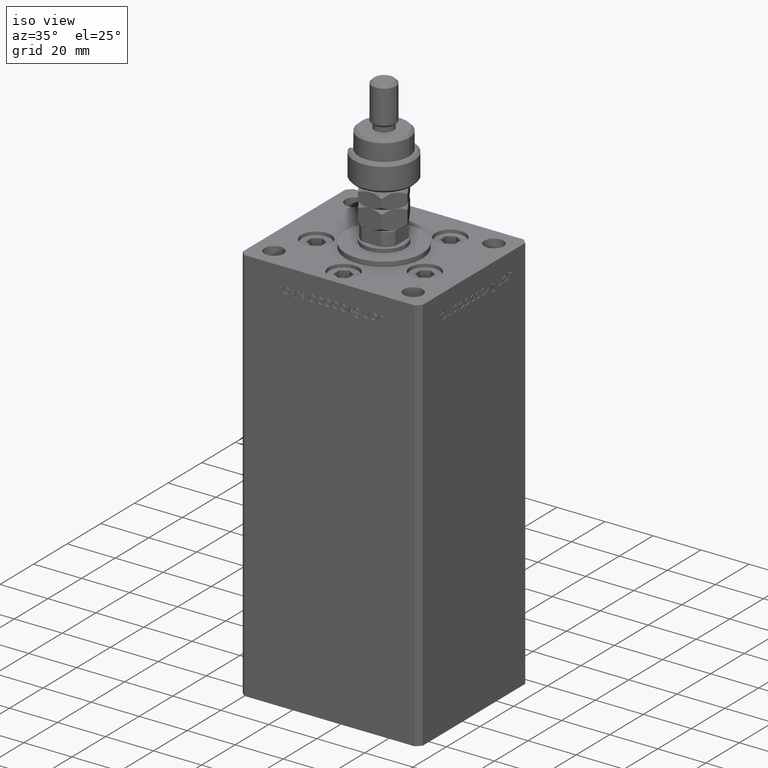
[diagram: clean part render]
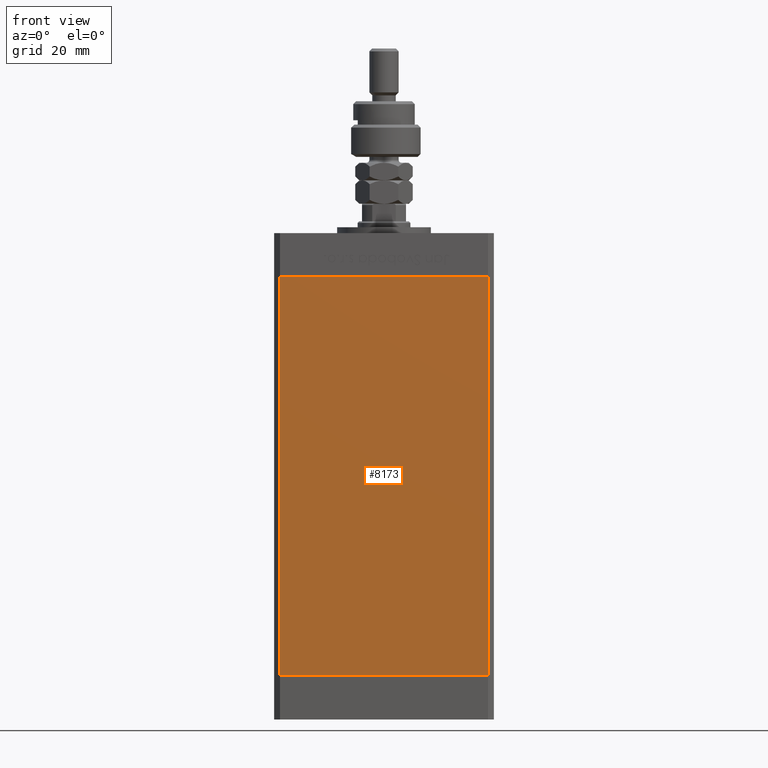
[diagram: tour spotlight — one face highlighted and labeled with its STEP entity id]
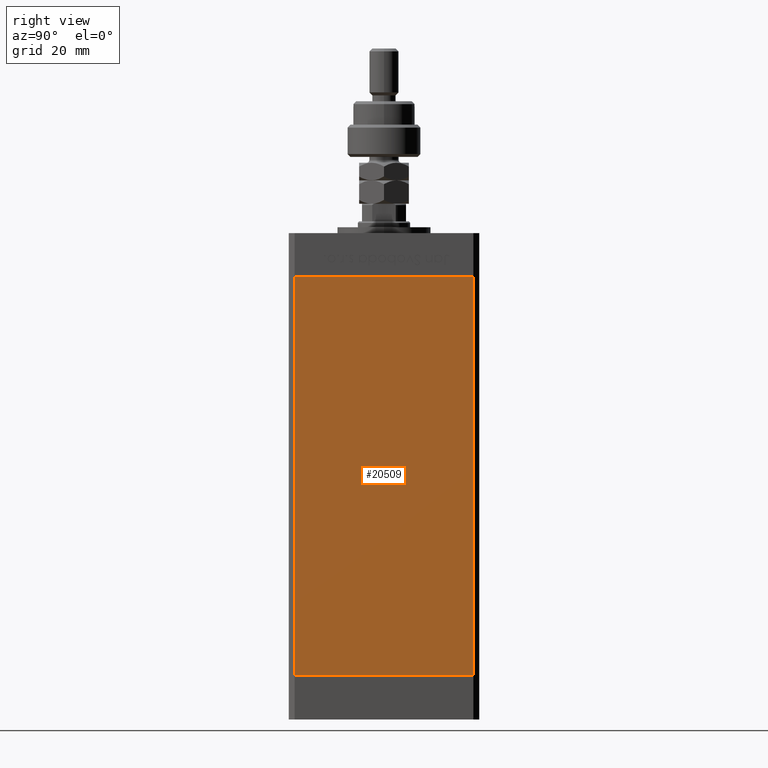
[diagram: tour spotlight — one face highlighted and labeled with its STEP entity id]
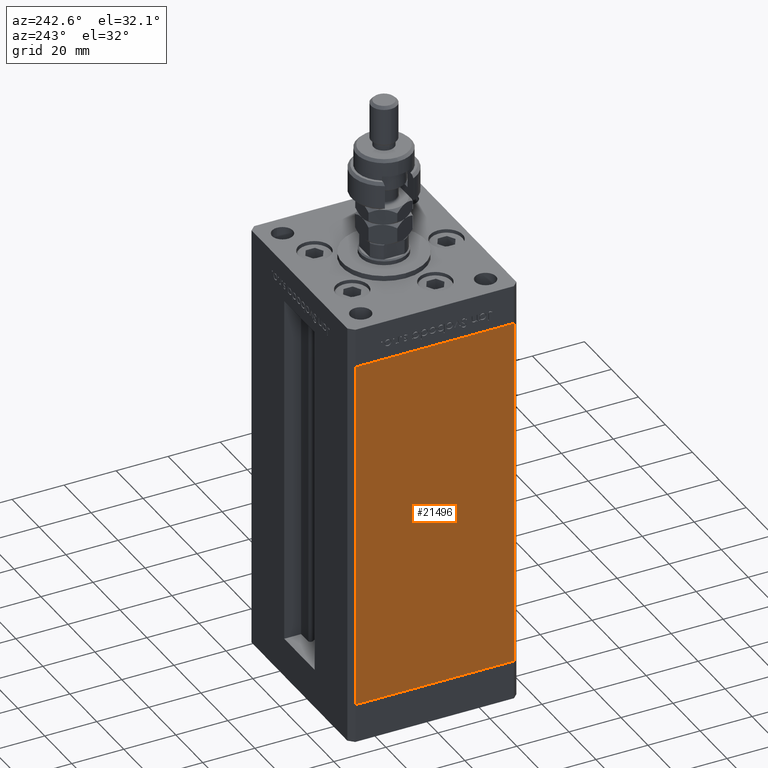
[diagram: tour spotlight — one face highlighted and labeled with its STEP entity id]
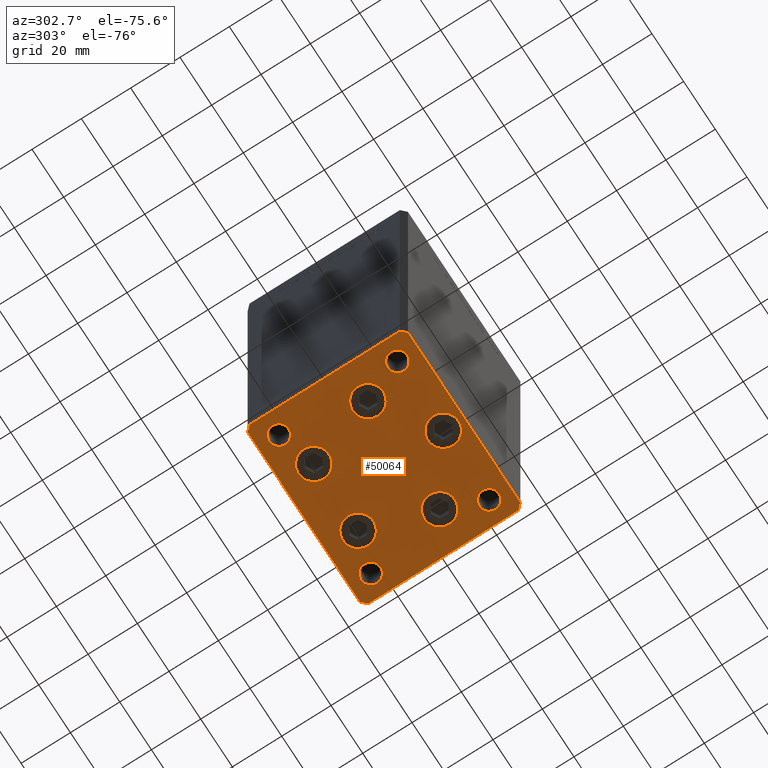
[diagram: tour spotlight — one face highlighted and labeled with its STEP entity id]
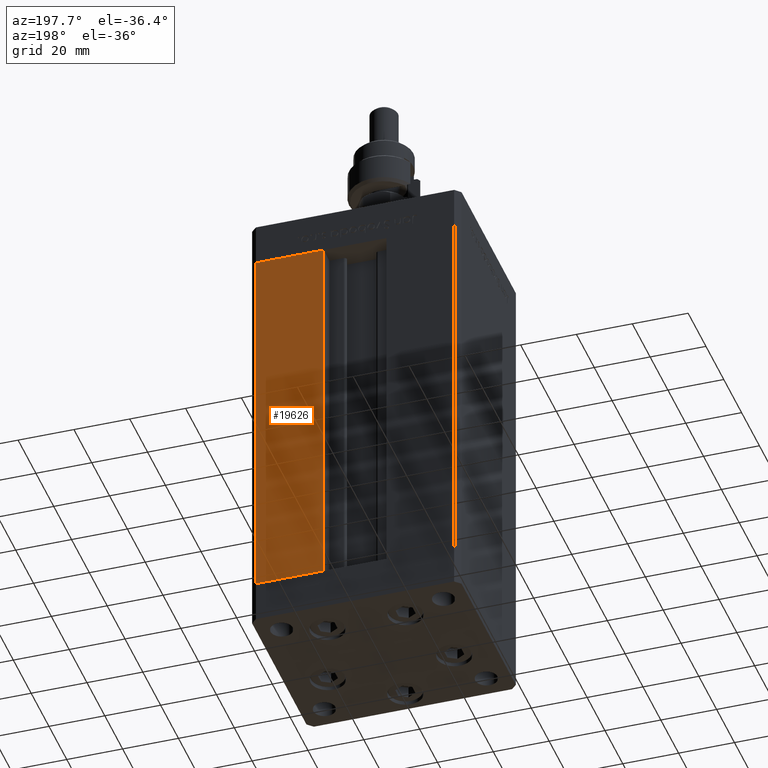
[diagram: tour spotlight — one face highlighted and labeled with its STEP entity id]
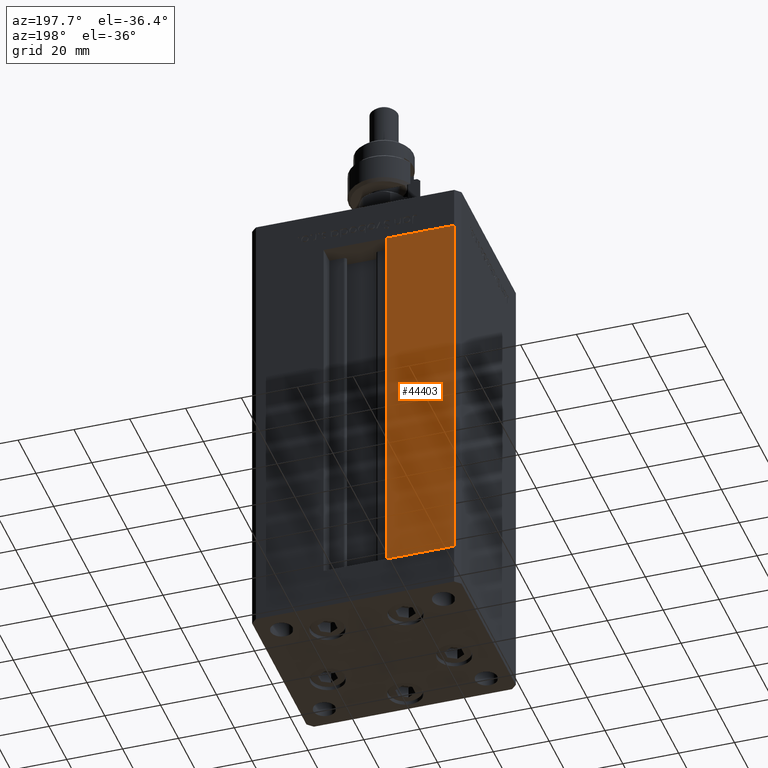
[diagram: tour spotlight — one face highlighted and labeled with its STEP entity id]
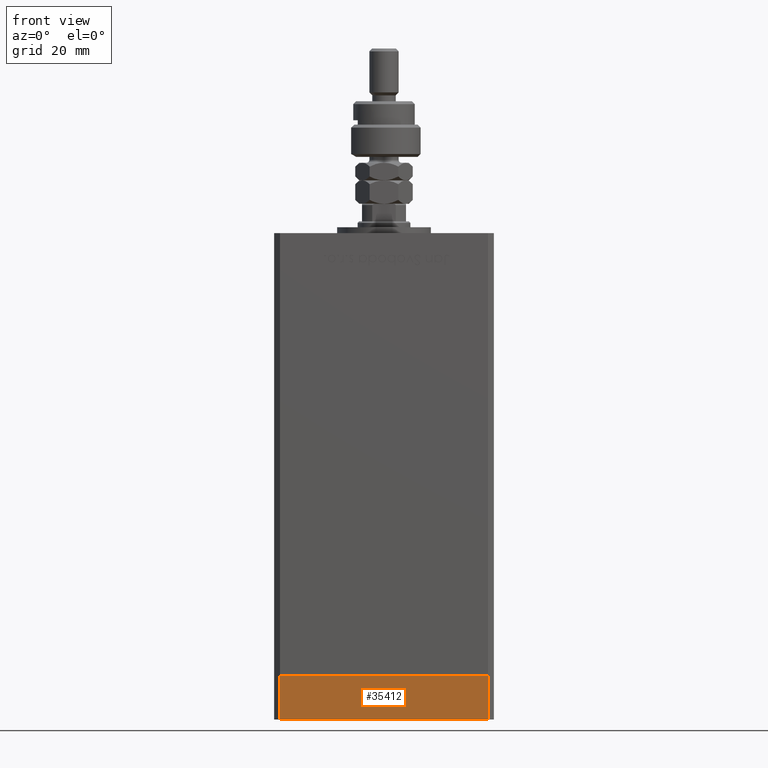
[diagram: tour spotlight — one face highlighted and labeled with its STEP entity id]
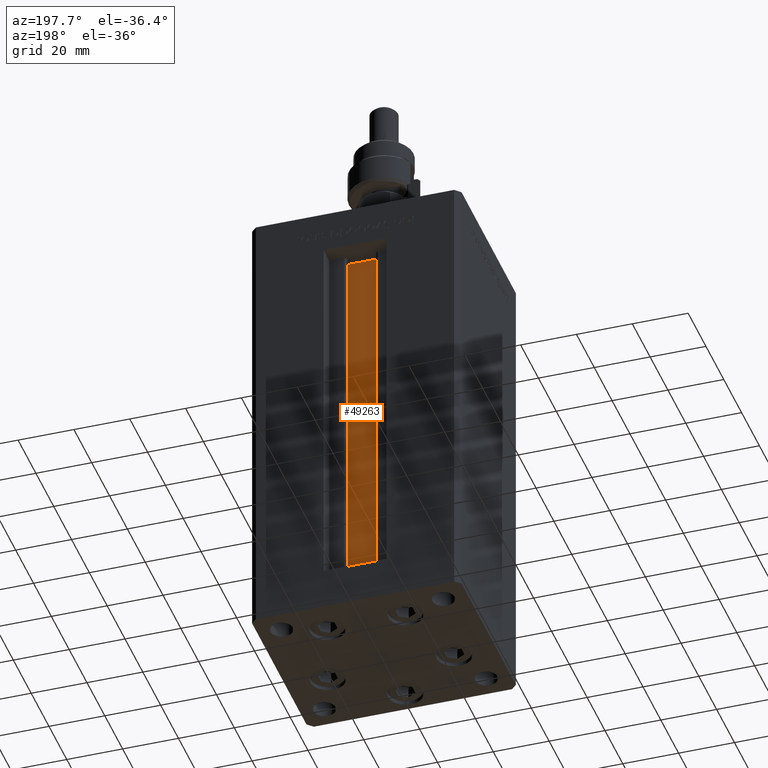
[diagram: tour spotlight — one face highlighted and labeled with its STEP entity id]
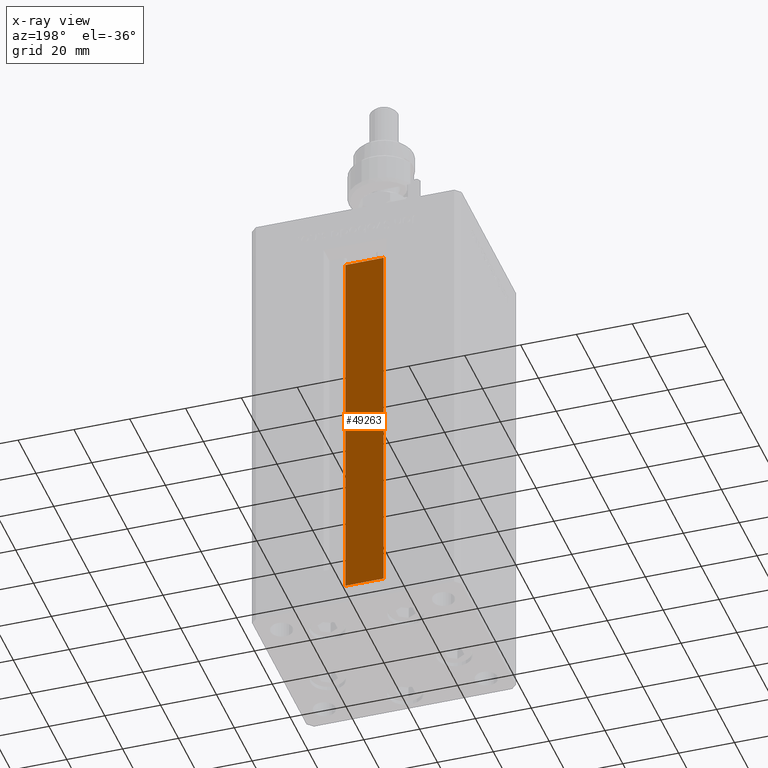
[diagram: x-ray of the same camera — body ghosted, this tour face saturated]
A machine part: a face-by-face anatomy tour. The part has 1258 B-rep faces; the first image is the clean iso view, then the 8 largest visible faces are spotlighted one at a time (largest first), each with its STEP entity span.

Face 1 — front view, entity #8173. In plain terms, the highlighted planar face has unit normal (0, 1, 0).
Definition (entity closure, byte-faithful):
#451 = VECTOR ( 'NONE', #25541, 1000.000000000000000 ) ;
#2304 = CARTESIAN_POINT ( 'NONE',  ( -35.49999999999999289, -32.50000000000000000, 136.0000000000000000 ) ) ;
#4456 = VECTOR ( 'NONE', #22246, 1000.000000000000000 ) ;
#4487 = ORIENTED_EDGE ( 'NONE', *, *, #41955, .F. ) ;
#8173 = ADVANCED_FACE ( 'NONE', ( #28955 ), #33373, .F. ) ;
#8728 = LINE ( 'NONE', #29131, #451 ) ;
#10879 = CARTESIAN_POINT ( 'NONE',  ( 35.49999999999999289, -32.50000000000000000, 136.0000000000000000 ) ) ;
#12541 = EDGE_CURVE ( 'NONE', #46160, #24132, #8728, .T. ) ;
#13305 = CARTESIAN_POINT ( 'NONE',  ( -35.49999999999999289, -32.50000000000000000, 0.000000000000000000 ) ) ;
#13534 = VERTEX_POINT ( 'NONE', #10879 ) ;
#14406 = AXIS2_PLACEMENT_3D ( 'NONE', #41399, #20681, #24274 ) ;
#14484 = CARTESIAN_POINT ( 'NONE',  ( 35.49999999999999289, -32.50000000000000000, 136.0000000000000000 ) ) ;
#15436 = VECTOR ( 'NONE', #17297, 1000.000000000000000 ) ;
#17297 = DIRECTION ( 'NONE',  ( -0.000000000000000000, -0.000000000000000000, -1.000000000000000000 ) ) ;
#18076 = EDGE_CURVE ( 'NONE', #22387, #46160, #47861, .T. ) ;
#19253 = EDGE_CURVE ( 'NONE', #22387, #13534, #52553, .T. ) ;
#20681 = DIRECTION ( 'NONE',  ( 0.000000000000000000, 1.000000000000000000, 0.000000000000000000 ) ) ;
#20952 = ORIENTED_EDGE ( 'NONE', *, *, #19253, .F. ) ;
#22246 = DIRECTION ( 'NONE',  ( -0.000000000000000000, -0.000000000000000000, -1.000000000000000000 ) ) ;
#22274 = ORIENTED_EDGE ( 'NONE', *, *, #12541, .T. ) ;
#22387 = VERTEX_POINT ( 'NONE', #45687 ) ;
#24132 = VERTEX_POINT ( 'NONE', #47024 ) ;
#24274 = DIRECTION ( 'NONE',  ( 0.000000000000000000, -0.000000000000000000, 1.000000000000000000 ) ) ;
#25541 = DIRECTION ( 'NONE',  ( 1.000000000000000000, 0.000000000000000000, 0.000000000000000000 ) ) ;
#28955 = FACE_OUTER_BOUND ( 'NONE', #51185, .T. ) ;
#29131 = CARTESIAN_POINT ( 'NONE',  ( -35.49999999999999289, -32.50000000000000000, 0.000000000000000000 ) ) ;
#29708 = CARTESIAN_POINT ( 'NONE',  ( -35.49999999999999289, -32.50000000000000000, 136.0000000000000000 ) ) ;
#33373 = PLANE ( 'NONE',  #14406 ) ;
#39613 = LINE ( 'NONE', #14484, #4456 ) ;
#41399 = CARTESIAN_POINT ( 'NONE',  ( -35.49999999999999289, -32.50000000000000000, 136.0000000000000000 ) ) ;
#41935 = VECTOR ( 'NONE', #48686, 1000.000000000000000 ) ;
#41955 = EDGE_CURVE ( 'NONE', #13534, #24132, #39613, .T. ) ;
#45687 = CARTESIAN_POINT ( 'NONE',  ( -35.49999999999999289, -32.50000000000000000, 136.0000000000000000 ) ) ;
#46160 = VERTEX_POINT ( 'NONE', #13305 ) ;
#47024 = CARTESIAN_POINT ( 'NONE',  ( 35.49999999999999289, -32.50000000000000000, 0.000000000000000000 ) ) ;
#47861 = LINE ( 'NONE', #29708, #15436 ) ;
#48686 = DIRECTION ( 'NONE',  ( 1.000000000000000000, 0.000000000000000000, 0.000000000000000000 ) ) ;
#51185 = EDGE_LOOP ( 'NONE', ( #22274, #4487, #20952, #51429 ) ) ;
#51429 = ORIENTED_EDGE ( 'NONE', *, *, #18076, .T. ) ;
#52553 = LINE ( 'NONE', #2304, #41935 ) ;

Face 2 — right view, entity #20509. In plain terms, the highlighted planar face has unit normal (1, -0, 0).
Definition (entity closure, byte-faithful):
#1298 = VECTOR ( 'NONE', #39179, 1000.000000000000000 ) ;
#1567 = LINE ( 'NONE', #43006, #2218 ) ;
#2218 = VECTOR ( 'NONE', #14251, 1000.000000000000000 ) ;
#2268 = CARTESIAN_POINT ( 'NONE',  ( 37.50000000000000711, 30.50000000000000000, 136.0000000000000000 ) ) ;
#2997 = ORIENTED_EDGE ( 'NONE', *, *, #9298, .T. ) ;
#8502 = CARTESIAN_POINT ( 'NONE',  ( 37.50000000000000711, 30.50000000000000000, 136.0000000000000000 ) ) ;
#9298 = EDGE_CURVE ( 'NONE', #33879, #41339, #20903, .T. ) ;
#11817 = ORIENTED_EDGE ( 'NONE', *, *, #13047, .F. ) ;
#12011 = AXIS2_PLACEMENT_3D ( 'NONE', #35362, #18521, #52769 ) ;
#12876 = EDGE_CURVE ( 'NONE', #41339, #51658, #43605, .T. ) ;
#13047 = EDGE_CURVE ( 'NONE', #33879, #34964, #1567, .T. ) ;
#14132 = ORIENTED_EDGE ( 'NONE', *, *, #12876, .T. ) ;
#14251 = DIRECTION ( 'NONE',  ( -0.000000000000000000, -0.000000000000000000, -1.000000000000000000 ) ) ;
#17195 = CARTESIAN_POINT ( 'NONE',  ( 37.50000000000000711, 30.50000000000000000, 0.000000000000000000 ) ) ;
#18521 = DIRECTION ( 'NONE',  ( 1.000000000000000000, -2.275047181608927644E-16, 0.000000000000000000 ) ) ;
#19467 = EDGE_LOOP ( 'NONE', ( #42458, #11817, #2997, #14132 ) ) ;
#20509 = ADVANCED_FACE ( 'NONE', ( #52223 ), #36445, .T. ) ;
#20903 = LINE ( 'NONE', #8502, #47925 ) ;
#20990 = DIRECTION ( 'NONE',  ( -2.275047181608927644E-16, -1.000000000000000000, 0.000000000000000000 ) ) ;
#24756 = DIRECTION ( 'NONE',  ( -2.275047181608927644E-16, -1.000000000000000000, 0.000000000000000000 ) ) ;
#25072 = CARTESIAN_POINT ( 'NONE',  ( 37.49999999999999289, -30.50000000000000000, 0.000000000000000000 ) ) ;
#33879 = VERTEX_POINT ( 'NONE', #2268 ) ;
#34515 = LINE ( 'NONE', #42260, #46980 ) ;
#34964 = VERTEX_POINT ( 'NONE', #17195 ) ;
#35362 = CARTESIAN_POINT ( 'NONE',  ( 37.50000000000000711, 30.50000000000000000, 136.0000000000000000 ) ) ;
#36445 = PLANE ( 'NONE',  #12011 ) ;
#38640 = CARTESIAN_POINT ( 'NONE',  ( 37.49999999999999289, -30.50000000000000000, 136.0000000000000000 ) ) ;
#39179 = DIRECTION ( 'NONE',  ( -0.000000000000000000, -0.000000000000000000, -1.000000000000000000 ) ) ;
#41339 = VERTEX_POINT ( 'NONE', #47854 ) ;
#42260 = CARTESIAN_POINT ( 'NONE',  ( 37.50000000000000711, 30.50000000000000000, 0.000000000000000000 ) ) ;
#42458 = ORIENTED_EDGE ( 'NONE', *, *, #48176, .F. ) ;
#43006 = CARTESIAN_POINT ( 'NONE',  ( 37.50000000000000711, 30.50000000000000000, 136.0000000000000000 ) ) ;
#43605 = LINE ( 'NONE', #38640, #1298 ) ;
#46980 = VECTOR ( 'NONE', #20990, 1000.000000000000000 ) ;
#47854 = CARTESIAN_POINT ( 'NONE',  ( 37.49999999999999289, -30.50000000000000000, 136.0000000000000000 ) ) ;
#47925 = VECTOR ( 'NONE', #24756, 1000.000000000000000 ) ;
#48176 = EDGE_CURVE ( 'NONE', #34964, #51658, #34515, .T. ) ;
#51658 = VERTEX_POINT ( 'NONE', #25072 ) ;
#52223 = FACE_OUTER_BOUND ( 'NONE', #19467, .T. ) ;
#52769 = DIRECTION ( 'NONE',  ( 2.275047181608927644E-16, 1.000000000000000000, 0.000000000000000000 ) ) ;

Face 3 — auxiliary view, entity #21496. In plain terms, the highlighted planar face has unit normal (1, 0, 0).
Definition (entity closure, byte-faithful):
#1015 = VECTOR ( 'NONE', #18237, 1000.000000000000000 ) ;
#5447 = CARTESIAN_POINT ( 'NONE',  ( -37.50000000000000711, 30.50000000000000000, 136.0000000000000000 ) ) ;
#6005 = VERTEX_POINT ( 'NONE', #32338 ) ;
#8374 = EDGE_CURVE ( 'NONE', #6005, #22863, #28623, .T. ) ;
#9219 = CARTESIAN_POINT ( 'NONE',  ( -37.50000000000000711, 30.50000000000000000, 136.0000000000000000 ) ) ;
#9516 = DIRECTION ( 'NONE',  ( -0.000000000000000000, -0.000000000000000000, -1.000000000000000000 ) ) ;
#9630 = EDGE_CURVE ( 'NONE', #54174, #6005, #13915, .T. ) ;
#13400 = ORIENTED_EDGE ( 'NONE', *, *, #45193, .F. ) ;
#13827 = AXIS2_PLACEMENT_3D ( 'NONE', #9219, #30174, #50910 ) ;
#13915 = LINE ( 'NONE', #46520, #37387 ) ;
#14738 = ORIENTED_EDGE ( 'NONE', *, *, #53411, .F. ) ;
#16200 = VECTOR ( 'NONE', #28345, 1000.000000000000000 ) ;
#17143 = LINE ( 'NONE', #38949, #1015 ) ;
#18237 = DIRECTION ( 'NONE',  ( -0.000000000000000000, -0.000000000000000000, -1.000000000000000000 ) ) ;
#18255 = DIRECTION ( 'NONE',  ( 2.275047181608927644E-16, -1.000000000000000000, 0.000000000000000000 ) ) ;
#21496 = ADVANCED_FACE ( 'NONE', ( #38192 ), #30976, .F. ) ;
#22393 = LINE ( 'NONE', #30129, #49802 ) ;
#22863 = VERTEX_POINT ( 'NONE', #35611 ) ;
#23659 = EDGE_LOOP ( 'NONE', ( #31732, #13400, #14738, #54076 ) ) ;
#28345 = DIRECTION ( 'NONE',  ( 2.275047181608927644E-16, -1.000000000000000000, 0.000000000000000000 ) ) ;
#28623 = LINE ( 'NONE', #41887, #16200 ) ;
#30129 = CARTESIAN_POINT ( 'NONE',  ( -37.50000000000000711, 30.50000000000000000, 136.0000000000000000 ) ) ;
#30174 = DIRECTION ( 'NONE',  ( 1.000000000000000000, 2.275047181608927644E-16, -0.000000000000000000 ) ) ;
#30976 = PLANE ( 'NONE',  #13827 ) ;
#31732 = ORIENTED_EDGE ( 'NONE', *, *, #8374, .T. ) ;
#32135 = CARTESIAN_POINT ( 'NONE',  ( -37.49999999999999289, -30.50000000000000000, 136.0000000000000000 ) ) ;
#32338 = CARTESIAN_POINT ( 'NONE',  ( -37.50000000000000711, 30.50000000000000000, 0.000000000000000000 ) ) ;
#35611 = CARTESIAN_POINT ( 'NONE',  ( -37.49999999999999289, -30.50000000000000000, 0.000000000000000000 ) ) ;
#37387 = VECTOR ( 'NONE', #9516, 1000.000000000000000 ) ;
#38192 = FACE_OUTER_BOUND ( 'NONE', #23659, .T. ) ;
#38949 = CARTESIAN_POINT ( 'NONE',  ( -37.49999999999999289, -30.50000000000000000, 136.0000000000000000 ) ) ;
#41887 = CARTESIAN_POINT ( 'NONE',  ( -37.50000000000000711, 30.50000000000000000, 0.000000000000000000 ) ) ;
#44753 = VERTEX_POINT ( 'NONE', #32135 ) ;
#45193 = EDGE_CURVE ( 'NONE', #44753, #22863, #17143, .T. ) ;
#46520 = CARTESIAN_POINT ( 'NONE',  ( -37.50000000000000711, 30.50000000000000000, 136.0000000000000000 ) ) ;
#49802 = VECTOR ( 'NONE', #18255, 1000.000000000000000 ) ;
#50910 = DIRECTION ( 'NONE',  ( -2.275047181608927644E-16, 1.000000000000000000, 0.000000000000000000 ) ) ;
#53411 = EDGE_CURVE ( 'NONE', #54174, #44753, #22393, .T. ) ;
#54076 = ORIENTED_EDGE ( 'NONE', *, *, #9630, .T. ) ;
#54174 = VERTEX_POINT ( 'NONE', #5447 ) ;

Face 4 — auxiliary view, entity #50064. In plain terms, the highlighted planar face has unit normal (0, 0, -1).
Definition (entity closure, byte-faithful):
#211 = FACE_BOUND ( 'NONE', #8379, .T. ) ;
#555 = CIRCLE ( 'NONE', #25240, 6.250000000000000000 ) ;
#756 = FACE_BOUND ( 'NONE', #44080, .T. ) ;
#884 = EDGE_CURVE ( 'NONE', #46743, #17808, #41846, .T. ) ;
#1027 = CARTESIAN_POINT ( 'NONE',  ( 0.000000000000000000, 0.000000000000000000, 0.000000000000000000 ) ) ;
#1135 = EDGE_CURVE ( 'NONE', #30446, #12515, #36252, .T. ) ;
#1221 = DIRECTION ( 'NONE',  ( 0.000000000000000000, -0.000000000000000000, -1.000000000000000000 ) ) ;
#1368 = DIRECTION ( 'NONE',  ( 1.000000000000000000, 0.000000000000000000, 0.000000000000000000 ) ) ;
#1642 = DIRECTION ( 'NONE',  ( 1.000000000000000000, 0.000000000000000000, 0.000000000000000000 ) ) ;
#1669 = VERTEX_POINT ( 'NONE', #11771 ) ;
#2127 = ORIENTED_EDGE ( 'NONE', *, *, #40129, .T. ) ;
#2451 = CARTESIAN_POINT ( 'NONE',  ( 6.250000000000002665, -24.00000000000000000, 0.000000000000000000 ) ) ;
#2713 = AXIS2_PLACEMENT_3D ( 'NONE', #53276, #49396, #15709 ) ;
#2797 = CARTESIAN_POINT ( 'NONE',  ( -25.00000000000001421, 24.00000000000000711, 0.000000000000000000 ) ) ;
#3100 = ORIENTED_EDGE ( 'NONE', *, *, #1135, .T. ) ;
#3243 = DIRECTION ( 'NONE',  ( 0.000000000000000000, -0.000000000000000000, -1.000000000000000000 ) ) ;
#3270 = CARTESIAN_POINT ( 'NONE',  ( -37.49999999999998579, -30.50000000000001421, 0.000000000000000000 ) ) ;
#3486 = DIRECTION ( 'NONE',  ( -1.478780668045802821E-15, 1.000000000000000000, 0.000000000000000000 ) ) ;
#3659 = CARTESIAN_POINT ( 'NONE',  ( 20.24106857963322526, 19.50000000000000000, 0.000000000000000000 ) ) ;
#3804 = DIRECTION ( 'NONE',  ( -0.000000000000000000, 0.000000000000000000, 1.000000000000000000 ) ) ;
#3809 = VERTEX_POINT ( 'NONE', #50743 ) ;
#3983 = CARTESIAN_POINT ( 'NONE',  ( 13.99106857963322348, 19.50000000000000000, 0.000000000000000000 ) ) ;
#3986 = VERTEX_POINT ( 'NONE', #18660 ) ;
#4070 = AXIS2_PLACEMENT_3D ( 'NONE', #13743, #39663, #18155 ) ;
#4294 = DIRECTION ( 'NONE',  ( 0.000000000000000000, -0.000000000000000000, -1.000000000000000000 ) ) ;
#4332 = EDGE_CURVE ( 'NONE', #46820, #47004, #9900, .T. ) ;
#4639 = FACE_BOUND ( 'NONE', #48908, .T. ) ;
#5467 = ORIENTED_EDGE ( 'NONE', *, *, #25796, .T. ) ;
#5566 = VECTOR ( 'NONE', #38899, 1000.000000000000000 ) ;
#5602 = AXIS2_PLACEMENT_3D ( 'NONE', #12017, #4294, #37950 ) ;
#5717 = DIRECTION ( 'NONE',  ( -0.000000000000000000, 0.000000000000000000, 1.000000000000000000 ) ) ;
#5868 = ORIENTED_EDGE ( 'NONE', *, *, #27167, .T. ) ;
#5883 = AXIS2_PLACEMENT_3D ( 'NONE', #11240, #3243, #49615 ) ;
#6116 = ORIENTED_EDGE ( 'NONE', *, *, #26347, .T. ) ;
#6613 = EDGE_CURVE ( 'NONE', #18160, #1669, #35660, .T. ) ;
#6675 = CIRCLE ( 'NONE', #46317, 4.000000000000003553 ) ;
#6744 = CARTESIAN_POINT ( 'NONE',  ( 37.50000000000001421, -30.50000000000000711, 0.000000000000000000 ) ) ;
#6884 = CARTESIAN_POINT ( 'NONE',  ( -35.49999999999998579, -32.50000000000001421, 0.000000000000000000 ) ) ;
#7264 = DIRECTION ( 'NONE',  ( -0.7071067811865426878, -0.7071067811865524577, 0.000000000000000000 ) ) ;
#7356 = VERTEX_POINT ( 'NONE', #52265 ) ;
#7700 = CIRCLE ( 'NONE', #12961, 6.250000000000001776 ) ;
#7758 = ORIENTED_EDGE ( 'NONE', *, *, #26670, .T. ) ;
#8177 = DIRECTION ( 'NONE',  ( 1.000000000000000000, 0.000000000000000000, 0.000000000000000000 ) ) ;
#8379 = EDGE_LOOP ( 'NONE', ( #15829, #5467 ) ) ;
#8381 = EDGE_CURVE ( 'NONE', #47004, #46820, #29382, .T. ) ;
#8968 = ORIENTED_EDGE ( 'NONE', *, *, #50232, .T. ) ;
#9274 = VERTEX_POINT ( 'NONE', #3270 ) ;
#9335 = CARTESIAN_POINT ( 'NONE',  ( 7.741068579633223479, 19.50000000000000000, 0.000000000000000000 ) ) ;
#9432 = VECTOR ( 'NONE', #41317, 999.9999999999998863 ) ;
#9900 = CIRCLE ( 'NONE', #10768, 4.000000000000003553 ) ;
#10428 = AXIS2_PLACEMENT_3D ( 'NONE', #50663, #1221, #30200 ) ;
#10523 = VERTEX_POINT ( 'NONE', #2797 ) ;
#10648 = ORIENTED_EDGE ( 'NONE', *, *, #19249, .T. ) ;
#10768 = AXIS2_PLACEMENT_3D ( 'NONE', #25182, #42051, #30152 ) ;
#11067 = CIRCLE ( 'NONE', #54277, 4.000000000000000000 ) ;
#11107 = LINE ( 'NONE', #49214, #44655 ) ;
#11240 = CARTESIAN_POINT ( 'NONE',  ( 22.62741699796951877, -8.000000000000000000, 0.000000000000000000 ) ) ;
#11290 = VERTEX_POINT ( 'NONE', #38920 ) ;
#11300 = VERTEX_POINT ( 'NONE', #51086 ) ;
#11324 = LINE ( 'NONE', #28137, #19024 ) ;
#11771 = CARTESIAN_POINT ( 'NONE',  ( -35.50000000000002842, 32.49999999999999289, 0.000000000000000000 ) ) ;
#11772 = CARTESIAN_POINT ( 'NONE',  ( -37.49999999999998579, -30.50000000000001421, 0.000000000000000000 ) ) ;
#11856 = CARTESIAN_POINT ( 'NONE',  ( 37.49999999999992184, 30.50000000000001066, 0.000000000000000000 ) ) ;
#12017 = CARTESIAN_POINT ( 'NONE',  ( 13.99106857963322348, 19.50000000000000000, 0.000000000000000000 ) ) ;
#12080 = FACE_BOUND ( 'NONE', #36108, .T. ) ;
#12191 = ORIENTED_EDGE ( 'NONE', *, *, #14256, .T. ) ;
#12299 = CARTESIAN_POINT ( 'NONE',  ( -29.00000000000001066, 24.00000000000000711, 0.000000000000000000 ) ) ;
#12301 = DIRECTION ( 'NONE',  ( 1.000000000000000000, 0.000000000000000000, 0.000000000000000000 ) ) ;
#12441 = CARTESIAN_POINT ( 'NONE',  ( -29.00000000000001066, -23.99999999999999289, 0.000000000000000000 ) ) ;
#12515 = VERTEX_POINT ( 'NONE', #37159 ) ;
#12711 = DIRECTION ( 'NONE',  ( 1.000000000000000000, 0.000000000000000000, 0.000000000000000000 ) ) ;
#12789 = DIRECTION ( 'NONE',  ( 1.000000000000000000, 0.000000000000000000, 0.000000000000000000 ) ) ;
#12961 = AXIS2_PLACEMENT_3D ( 'NONE', #14331, #30637, #31702 ) ;
#13165 = FACE_BOUND ( 'NONE', #17002, .T. ) ;
#13743 = CARTESIAN_POINT ( 'NONE',  ( -22.62741699796951877, -8.000000000000005329, 0.000000000000000000 ) ) ;
#14179 = CARTESIAN_POINT ( 'NONE',  ( 16.37741699796951877, -8.000000000000000000, 0.000000000000000000 ) ) ;
#14182 = VECTOR ( 'NONE', #3486, 1000.000000000000000 ) ;
#14256 = EDGE_CURVE ( 'NONE', #3809, #11300, #6675, .T. ) ;
#14331 = CARTESIAN_POINT ( 'NONE',  ( -22.62741699796951877, -8.000000000000005329, 0.000000000000000000 ) ) ;
#14646 = EDGE_LOOP ( 'NONE', ( #7758, #43599 ) ) ;
#14680 = DIRECTION ( 'NONE',  ( -1.000000000000000000, -1.954618001100629052E-16, 0.000000000000000000 ) ) ;
#15148 = ORIENTED_EDGE ( 'NONE', *, *, #26257, .T. ) ;
#15547 = ORIENTED_EDGE ( 'NONE', *, *, #31741, .T. ) ;
#15709 = DIRECTION ( 'NONE',  ( 1.000000000000000000, 0.000000000000000000, 0.000000000000000000 ) ) ;
#15814 = CARTESIAN_POINT ( 'NONE',  ( -28.87741699796952233, -8.000000000000005329, 0.000000000000000000 ) ) ;
#15829 = ORIENTED_EDGE ( 'NONE', *, *, #24608, .T. ) ;
#16078 = VERTEX_POINT ( 'NONE', #27297 ) ;
#16174 = AXIS2_PLACEMENT_3D ( 'NONE', #1027, #5717, #51554 ) ;
#16843 = ORIENTED_EDGE ( 'NONE', *, *, #42963, .F. ) ;
#17002 = EDGE_LOOP ( 'NONE', ( #21368, #43288 ) ) ;
#17808 = VERTEX_POINT ( 'NONE', #11856 ) ;
#18045 = ORIENTED_EDGE ( 'NONE', *, *, #33771, .F. ) ;
#18155 = DIRECTION ( 'NONE',  ( 1.000000000000000000, 0.000000000000000000, 0.000000000000000000 ) ) ;
#18160 = VERTEX_POINT ( 'NONE', #28486 ) ;
#18176 = CARTESIAN_POINT ( 'NONE',  ( 35.50000000000000711, -32.50000000000000711, 0.000000000000000000 ) ) ;
#18483 = DIRECTION ( 'NONE',  ( 0.000000000000000000, -0.000000000000000000, -1.000000000000000000 ) ) ;
#18550 = EDGE_CURVE ( 'NONE', #28968, #46743, #11324, .T. ) ;
#18660 = CARTESIAN_POINT ( 'NONE',  ( -16.37741699796951877, -8.000000000000005329, 0.000000000000000000 ) ) ;
#19024 = VECTOR ( 'NONE', #45010, 1000.000000000000000 ) ;
#19249 = EDGE_CURVE ( 'NONE', #12515, #30446, #11067, .T. ) ;
#19287 = VERTEX_POINT ( 'NONE', #36238 ) ;
#19512 = VERTEX_POINT ( 'NONE', #47202 ) ;
#19612 = ORIENTED_EDGE ( 'NONE', *, *, #27581, .T. ) ;
#19680 = VERTEX_POINT ( 'NONE', #2451 ) ;
#20802 = DIRECTION ( 'NONE',  ( 0.000000000000000000, -0.000000000000000000, -1.000000000000000000 ) ) ;
#21073 = EDGE_CURVE ( 'NONE', #31431, #19287, #48194, .T. ) ;
#21093 = CARTESIAN_POINT ( 'NONE',  ( -33.00000000000000711, -23.99999999999999289, 0.000000000000000000 ) ) ;
#21368 = ORIENTED_EDGE ( 'NONE', *, *, #8381, .F. ) ;
#21455 = PLANE ( 'NONE',  #16174 ) ;
#21517 = VERTEX_POINT ( 'NONE', #30448 ) ;
#21580 = EDGE_CURVE ( 'NONE', #1669, #16078, #11107, .T. ) ;
#21716 = AXIS2_PLACEMENT_3D ( 'NONE', #3983, #20802, #12789 ) ;
#21784 = CARTESIAN_POINT ( 'NONE',  ( -37.50000000000001421, 30.49999999999998579, 0.000000000000000000 ) ) ;
#21791 = ORIENTED_EDGE ( 'NONE', *, *, #23748, .T. ) ;
#22216 = CARTESIAN_POINT ( 'NONE',  ( 29.00000000000001066, -23.99999999999999289, 0.000000000000000000 ) ) ;
#22306 = VECTOR ( 'NONE', #14680, 1000.000000000000000 ) ;
#22340 = DIRECTION ( 'NONE',  ( 0.000000000000000000, -0.000000000000000000, -1.000000000000000000 ) ) ;
#22679 = VERTEX_POINT ( 'NONE', #3659 ) ;
#22994 = DIRECTION ( 'NONE',  ( 0.000000000000000000, -0.000000000000000000, -1.000000000000000000 ) ) ;
#23368 = LINE ( 'NONE', #50149, #9432 ) ;
#23748 = EDGE_CURVE ( 'NONE', #19512, #28968, #49381, .T. ) ;
#24459 = LINE ( 'NONE', #11772, #35361 ) ;
#24608 = EDGE_CURVE ( 'NONE', #38646, #3986, #7700, .T. ) ;
#24724 = VERTEX_POINT ( 'NONE', #9335 ) ;
#24805 = EDGE_LOOP ( 'NONE', ( #2127, #21791, #33882, #24825, #19612, #33741, #44447, #36142 ) ) ;
#24825 = ORIENTED_EDGE ( 'NONE', *, *, #884, .T. ) ;
#25182 = CARTESIAN_POINT ( 'NONE',  ( 29.00000000000001066, 24.00000000000000711, 0.000000000000000000 ) ) ;
#25219 = EDGE_CURVE ( 'NONE', #19680, #45834, #44736, .T. ) ;
#25240 = AXIS2_PLACEMENT_3D ( 'NONE', #46266, #50135, #12301 ) ;
#25402 = DIRECTION ( 'NONE',  ( 0.000000000000000000, -0.000000000000000000, -1.000000000000000000 ) ) ;
#25435 = CIRCLE ( 'NONE', #32491, 6.250000000000000000 ) ;
#25796 = EDGE_CURVE ( 'NONE', #3986, #38646, #39319, .T. ) ;
#25943 = DIRECTION ( 'NONE',  ( 0.000000000000000000, -0.000000000000000000, -1.000000000000000000 ) ) ;
#26133 = FACE_BOUND ( 'NONE', #38581, .T. ) ;
#26186 = EDGE_LOOP ( 'NONE', ( #8968, #15148 ) ) ;
#26257 = EDGE_CURVE ( 'NONE', #22679, #24724, #42889, .T. ) ;
#26266 = CIRCLE ( 'NONE', #10428, 6.250000000000001776 ) ;
#26347 = EDGE_CURVE ( 'NONE', #45834, #19680, #30533, .T. ) ;
#26670 = EDGE_CURVE ( 'NONE', #7356, #11290, #555, .T. ) ;
#26685 = ORIENTED_EDGE ( 'NONE', *, *, #21073, .T. ) ;
#26965 = AXIS2_PLACEMENT_3D ( 'NONE', #51093, #25943, #1642 ) ;
#27167 = EDGE_CURVE ( 'NONE', #11300, #3809, #47307, .T. ) ;
#27297 = CARTESIAN_POINT ( 'NONE',  ( -37.50000000000001421, 30.49999999999998579, 0.000000000000000000 ) ) ;
#27581 = EDGE_CURVE ( 'NONE', #17808, #18160, #23368, .T. ) ;
#27668 = DIRECTION ( 'NONE',  ( 1.000000000000000000, 0.000000000000000000, 0.000000000000000000 ) ) ;
#27837 = AXIS2_PLACEMENT_3D ( 'NONE', #40144, #28458, #54157 ) ;
#27942 = CARTESIAN_POINT ( 'NONE',  ( -29.00000000000001066, -23.99999999999999289, 0.000000000000000000 ) ) ;
#28137 = CARTESIAN_POINT ( 'NONE',  ( 35.50000000000000711, -32.50000000000000711, 0.000000000000000000 ) ) ;
#28458 = DIRECTION ( 'NONE',  ( 0.000000000000000000, -0.000000000000000000, -1.000000000000000000 ) ) ;
#28486 = CARTESIAN_POINT ( 'NONE',  ( 35.49999999999992184, 32.50000000000000711, 0.000000000000000000 ) ) ;
#28522 = AXIS2_PLACEMENT_3D ( 'NONE', #36637, #3804, #45220 ) ;
#28831 = VECTOR ( 'NONE', #31971, 1000.000000000000000 ) ;
#28968 = VERTEX_POINT ( 'NONE', #18176 ) ;
#28973 = AXIS2_PLACEMENT_3D ( 'NONE', #12299, #45995, #8177 ) ;
#29119 = CARTESIAN_POINT ( 'NONE',  ( 37.50000000000001421, -30.50000000000000711, 0.000000000000000000 ) ) ;
#29382 = CIRCLE ( 'NONE', #28522, 4.000000000000003553 ) ;
#29728 = FACE_BOUND ( 'NONE', #26186, .T. ) ;
#30152 = DIRECTION ( 'NONE',  ( 1.000000000000000000, 0.000000000000000000, 0.000000000000000000 ) ) ;
#30200 = DIRECTION ( 'NONE',  ( 1.000000000000000000, 0.000000000000000000, 0.000000000000000000 ) ) ;
#30446 = VERTEX_POINT ( 'NONE', #21093 ) ;
#30448 = CARTESIAN_POINT ( 'NONE',  ( -33.00000000000000711, 24.00000000000000711, 0.000000000000000000 ) ) ;
#30533 = CIRCLE ( 'NONE', #26965, 6.250000000000000000 ) ;
#30637 = DIRECTION ( 'NONE',  ( 0.000000000000000000, -0.000000000000000000, -1.000000000000000000 ) ) ;
#31431 = VERTEX_POINT ( 'NONE', #14179 ) ;
#31702 = DIRECTION ( 'NONE',  ( 1.000000000000000000, 0.000000000000000000, 0.000000000000000000 ) ) ;
#31741 = EDGE_CURVE ( 'NONE', #19287, #31431, #26266, .T. ) ;
#31971 = DIRECTION ( 'NONE',  ( 1.000000000000000000, 9.773090005503140331E-17, 0.000000000000000000 ) ) ;
#32043 = CIRCLE ( 'NONE', #5602, 6.250000000000000000 ) ;
#32418 = EDGE_CURVE ( 'NONE', #11290, #7356, #25435, .T. ) ;
#32491 = AXIS2_PLACEMENT_3D ( 'NONE', #51895, #22340, #1368 ) ;
#33741 = ORIENTED_EDGE ( 'NONE', *, *, #6613, .T. ) ;
#33771 = EDGE_CURVE ( 'NONE', #21517, #10523, #38690, .T. ) ;
#33882 = ORIENTED_EDGE ( 'NONE', *, *, #18550, .T. ) ;
#34467 = CIRCLE ( 'NONE', #2713, 3.999999999999996447 ) ;
#35058 = CARTESIAN_POINT ( 'NONE',  ( 29.00000000000001066, -23.99999999999999289, 0.000000000000000000 ) ) ;
#35280 = LINE ( 'NONE', #21784, #5566 ) ;
#35361 = VECTOR ( 'NONE', #45466, 1000.000000000000114 ) ;
#35660 = LINE ( 'NONE', #53089, #22306 ) ;
#36108 = EDGE_LOOP ( 'NONE', ( #6116, #46708 ) ) ;
#36142 = ORIENTED_EDGE ( 'NONE', *, *, #48932, .T. ) ;
#36238 = CARTESIAN_POINT ( 'NONE',  ( 28.87741699796952233, -8.000000000000000000, 0.000000000000000000 ) ) ;
#36252 = CIRCLE ( 'NONE', #40691, 4.000000000000000000 ) ;
#36637 = CARTESIAN_POINT ( 'NONE',  ( 29.00000000000001066, 24.00000000000000711, 0.000000000000000000 ) ) ;
#37159 = CARTESIAN_POINT ( 'NONE',  ( -25.00000000000001066, -23.99999999999999289, 0.000000000000000000 ) ) ;
#37950 = DIRECTION ( 'NONE',  ( 1.000000000000000000, 0.000000000000000000, 0.000000000000000000 ) ) ;
#38021 = FACE_BOUND ( 'NONE', #54650, .T. ) ;
#38160 = CARTESIAN_POINT ( 'NONE',  ( 33.00000000000001421, 24.00000000000000711, 0.000000000000000000 ) ) ;
#38581 = EDGE_LOOP ( 'NONE', ( #16843, #18045 ) ) ;
#38646 = VERTEX_POINT ( 'NONE', #15814 ) ;
#38690 = CIRCLE ( 'NONE', #28973, 3.999999999999996447 ) ;
#38899 = DIRECTION ( 'NONE',  ( 4.550094363217855288E-16, -1.000000000000000000, 0.000000000000000000 ) ) ;
#38920 = CARTESIAN_POINT ( 'NONE',  ( -7.741068579633227031, 19.49999999999999645, 0.000000000000000000 ) ) ;
#39319 = CIRCLE ( 'NONE', #4070, 6.250000000000001776 ) ;
#39326 = DIRECTION ( 'NONE',  ( 1.000000000000000000, 0.000000000000000000, 0.000000000000000000 ) ) ;
#39576 = CARTESIAN_POINT ( 'NONE',  ( 25.00000000000000711, 24.00000000000000711, 0.000000000000000000 ) ) ;
#39663 = DIRECTION ( 'NONE',  ( 0.000000000000000000, -0.000000000000000000, -1.000000000000000000 ) ) ;
#40129 = EDGE_CURVE ( 'NONE', #9274, #19512, #24459, .T. ) ;
#40144 = CARTESIAN_POINT ( 'NONE',  ( 2.939152317953647500E-15, -24.00000000000000000, 0.000000000000000000 ) ) ;
#40691 = AXIS2_PLACEMENT_3D ( 'NONE', #12441, #25402, #12711 ) ;
#41317 = DIRECTION ( 'NONE',  ( -0.7071067811865482389, 0.7071067811865469066, 0.000000000000000000 ) ) ;
#41846 = LINE ( 'NONE', #29119, #14182 ) ;
#42051 = DIRECTION ( 'NONE',  ( -0.000000000000000000, 0.000000000000000000, 1.000000000000000000 ) ) ;
#42175 = FACE_BOUND ( 'NONE', #14646, .T. ) ;
#42889 = CIRCLE ( 'NONE', #21716, 6.250000000000000000 ) ;
#42951 = DIRECTION ( 'NONE',  ( 0.000000000000000000, -0.000000000000000000, -1.000000000000000000 ) ) ;
#42963 = EDGE_CURVE ( 'NONE', #10523, #21517, #34467, .T. ) ;
#43288 = ORIENTED_EDGE ( 'NONE', *, *, #4332, .F. ) ;
#43599 = ORIENTED_EDGE ( 'NONE', *, *, #32418, .T. ) ;
#44080 = EDGE_LOOP ( 'NONE', ( #10648, #3100 ) ) ;
#44447 = ORIENTED_EDGE ( 'NONE', *, *, #21580, .T. ) ;
#44655 = VECTOR ( 'NONE', #7264, 1000.000000000000000 ) ;
#44736 = CIRCLE ( 'NONE', #27837, 6.250000000000000000 ) ;
#45010 = DIRECTION ( 'NONE',  ( 0.7071067811865487940, 0.7071067811865463515, 0.000000000000000000 ) ) ;
#45211 = CARTESIAN_POINT ( 'NONE',  ( -6.249999999999997335, -24.00000000000000000, 0.000000000000000000 ) ) ;
#45220 = DIRECTION ( 'NONE',  ( 1.000000000000000000, 0.000000000000000000, 0.000000000000000000 ) ) ;
#45466 = DIRECTION ( 'NONE',  ( 0.7071067811865474617, -0.7071067811865474617, 0.000000000000000000 ) ) ;
#45834 = VERTEX_POINT ( 'NONE', #45211 ) ;
#45995 = DIRECTION ( 'NONE',  ( -0.000000000000000000, 0.000000000000000000, 1.000000000000000000 ) ) ;
#46266 = CARTESIAN_POINT ( 'NONE',  ( -13.99106857963322703, 19.49999999999999645, 0.000000000000000000 ) ) ;
#46317 = AXIS2_PLACEMENT_3D ( 'NONE', #22216, #42951, #39326 ) ;
#46708 = ORIENTED_EDGE ( 'NONE', *, *, #25219, .T. ) ;
#46743 = VERTEX_POINT ( 'NONE', #6744 ) ;
#46820 = VERTEX_POINT ( 'NONE', #39576 ) ;
#46868 = FACE_OUTER_BOUND ( 'NONE', #24805, .T. ) ;
#47004 = VERTEX_POINT ( 'NONE', #38160 ) ;
#47202 = CARTESIAN_POINT ( 'NONE',  ( -35.49999999999998579, -32.50000000000001421, 0.000000000000000000 ) ) ;
#47307 = CIRCLE ( 'NONE', #54361, 4.000000000000003553 ) ;
#48194 = CIRCLE ( 'NONE', #5883, 6.250000000000001776 ) ;
#48908 = EDGE_LOOP ( 'NONE', ( #12191, #5868 ) ) ;
#48932 = EDGE_CURVE ( 'NONE', #16078, #9274, #35280, .T. ) ;
#49214 = CARTESIAN_POINT ( 'NONE',  ( -35.50000000000002842, 32.49999999999999289, 0.000000000000000000 ) ) ;
#49381 = LINE ( 'NONE', #6884, #28831 ) ;
#49396 = DIRECTION ( 'NONE',  ( -0.000000000000000000, 0.000000000000000000, 1.000000000000000000 ) ) ;
#49615 = DIRECTION ( 'NONE',  ( 1.000000000000000000, 0.000000000000000000, 0.000000000000000000 ) ) ;
#50064 = ADVANCED_FACE ( 'NONE', ( #42175, #29728, #38021, #12080, #211, #13165, #4639, #26133, #46868, #756 ), #21455, .T. ) ;
#50135 = DIRECTION ( 'NONE',  ( 0.000000000000000000, -0.000000000000000000, -1.000000000000000000 ) ) ;
#50149 = CARTESIAN_POINT ( 'NONE',  ( 37.49999999999992184, 30.50000000000001066, 0.000000000000000000 ) ) ;
#50232 = EDGE_CURVE ( 'NONE', #24724, #22679, #32043, .T. ) ;
#50663 = CARTESIAN_POINT ( 'NONE',  ( 22.62741699796951877, -8.000000000000000000, 0.000000000000000000 ) ) ;
#50743 = CARTESIAN_POINT ( 'NONE',  ( 33.00000000000001421, -23.99999999999999289, 0.000000000000000000 ) ) ;
#51086 = CARTESIAN_POINT ( 'NONE',  ( 25.00000000000000711, -23.99999999999999289, 0.000000000000000000 ) ) ;
#51093 = CARTESIAN_POINT ( 'NONE',  ( 2.939152317953647500E-15, -24.00000000000000000, 0.000000000000000000 ) ) ;
#51100 = DIRECTION ( 'NONE',  ( 1.000000000000000000, 0.000000000000000000, 0.000000000000000000 ) ) ;
#51554 = DIRECTION ( 'NONE',  ( 1.000000000000000000, 0.000000000000000000, 0.000000000000000000 ) ) ;
#51895 = CARTESIAN_POINT ( 'NONE',  ( -13.99106857963322703, 19.49999999999999645, 0.000000000000000000 ) ) ;
#52265 = CARTESIAN_POINT ( 'NONE',  ( -20.24106857963322881, 19.49999999999999645, 0.000000000000000000 ) ) ;
#53089 = CARTESIAN_POINT ( 'NONE',  ( 35.49999999999992184, 32.50000000000000711, 0.000000000000000000 ) ) ;
#53276 = CARTESIAN_POINT ( 'NONE',  ( -29.00000000000001066, 24.00000000000000711, 0.000000000000000000 ) ) ;
#54157 = DIRECTION ( 'NONE',  ( 1.000000000000000000, 0.000000000000000000, 0.000000000000000000 ) ) ;
#54277 = AXIS2_PLACEMENT_3D ( 'NONE', #27942, #22994, #27668 ) ;
#54361 = AXIS2_PLACEMENT_3D ( 'NONE', #35058, #18483, #51100 ) ;
#54650 = EDGE_LOOP ( 'NONE', ( #26685, #15547 ) ) ;

Face 5 — auxiliary view, entity #19626. In plain terms, the highlighted planar face has unit normal (0, -1, 0).
Definition (entity closure, byte-faithful):
#304 = VECTOR ( 'NONE', #33940, 1000.000000000000000 ) ;
#792 = DIRECTION ( 'NONE',  ( -0.000000000000000000, -0.000000000000000000, -1.000000000000000000 ) ) ;
#2678 = VECTOR ( 'NONE', #39086, 1000.000000000000000 ) ;
#4657 = VERTEX_POINT ( 'NONE', #41302 ) ;
#4678 = CARTESIAN_POINT ( 'NONE',  ( 35.50000000000000000, 32.49999999999999289, 136.0000000000000000 ) ) ;
#4894 = EDGE_CURVE ( 'NONE', #53929, #20602, #52582, .T. ) ;
#5014 = CARTESIAN_POINT ( 'NONE',  ( 11.25000000000000178, 32.49999999999999289, 0.000000000000000000 ) ) ;
#7139 = ORIENTED_EDGE ( 'NONE', *, *, #36267, .T. ) ;
#10063 = CARTESIAN_POINT ( 'NONE',  ( -11.25000000000000178, 32.49999999999999289, 136.0000000000000000 ) ) ;
#15680 = FACE_OUTER_BOUND ( 'NONE', #46808, .T. ) ;
#16542 = ORIENTED_EDGE ( 'NONE', *, *, #50585, .T. ) ;
#19626 = ADVANCED_FACE ( 'NONE', ( #15680 ), #31955, .F. ) ;
#20602 = VERTEX_POINT ( 'NONE', #39870 ) ;
#20703 = LINE ( 'NONE', #21246, #304 ) ;
#21246 = CARTESIAN_POINT ( 'NONE',  ( -11.25000000000000178, 32.49999999999999289, 0.000000000000000000 ) ) ;
#23404 = DIRECTION ( 'NONE',  ( 0.000000000000000000, -1.000000000000000000, 0.000000000000000000 ) ) ;
#29710 = CARTESIAN_POINT ( 'NONE',  ( 11.25000000000000178, 32.49999999999999289, 0.000000000000000000 ) ) ;
#30257 = LINE ( 'NONE', #29710, #2678 ) ;
#30566 = ORIENTED_EDGE ( 'NONE', *, *, #37314, .T. ) ;
#31844 = DIRECTION ( 'NONE',  ( 1.000000000000000000, 0.000000000000000000, 0.000000000000000000 ) ) ;
#31955 = PLANE ( 'NONE',  #36675 ) ;
#32503 = CARTESIAN_POINT ( 'NONE',  ( -11.25000000000000178, 32.49999999999999289, 136.0000000000000000 ) ) ;
#33940 = DIRECTION ( 'NONE',  ( -1.000000000000000000, 0.000000000000000000, 0.000000000000000000 ) ) ;
#35283 = CARTESIAN_POINT ( 'NONE',  ( 11.24999999999999467, 32.49999999999999289, 136.0000000000000000 ) ) ;
#36267 = EDGE_CURVE ( 'NONE', #20602, #4657, #54645, .T. ) ;
#36675 = AXIS2_PLACEMENT_3D ( 'NONE', #32503, #23404, #45228 ) ;
#37314 = EDGE_CURVE ( 'NONE', #45187, #53929, #30257, .T. ) ;
#39086 = DIRECTION ( 'NONE',  ( -0.000000000000000000, -0.000000000000000000, 1.000000000000000000 ) ) ;
#39870 = CARTESIAN_POINT ( 'NONE',  ( 35.50000000000000000, 32.49999999999999289, 136.0000000000000000 ) ) ;
#41302 = CARTESIAN_POINT ( 'NONE',  ( 35.50000000000000000, 32.49999999999999289, 0.000000000000000000 ) ) ;
#41449 = VECTOR ( 'NONE', #792, 1000.000000000000000 ) ;
#43407 = VECTOR ( 'NONE', #31844, 1000.000000000000000 ) ;
#43858 = ORIENTED_EDGE ( 'NONE', *, *, #4894, .T. ) ;
#45187 = VERTEX_POINT ( 'NONE', #5014 ) ;
#45228 = DIRECTION ( 'NONE',  ( 0.000000000000000000, -0.000000000000000000, -1.000000000000000000 ) ) ;
#46808 = EDGE_LOOP ( 'NONE', ( #16542, #30566, #43858, #7139 ) ) ;
#50585 = EDGE_CURVE ( 'NONE', #4657, #45187, #20703, .T. ) ;
#52582 = LINE ( 'NONE', #10063, #43407 ) ;
#53929 = VERTEX_POINT ( 'NONE', #35283 ) ;
#54645 = LINE ( 'NONE', #4678, #41449 ) ;

Face 6 — auxiliary view, entity #44403. In plain terms, the highlighted planar face has unit normal (0, -1, 0).
Definition (entity closure, byte-faithful):
#1940 = FACE_OUTER_BOUND ( 'NONE', #43798, .T. ) ;
#3480 = EDGE_CURVE ( 'NONE', #15153, #41050, #42041, .T. ) ;
#4137 = CARTESIAN_POINT ( 'NONE',  ( -11.25000000000000178, 32.49999999999999289, 136.0000000000000000 ) ) ;
#5363 = LINE ( 'NONE', #10023, #29970 ) ;
#5792 = CARTESIAN_POINT ( 'NONE',  ( -11.25000000000000178, 32.49999999999999289, 0.000000000000000000 ) ) ;
#8205 = CARTESIAN_POINT ( 'NONE',  ( -35.50000000000000000, 32.49999999999999289, 0.000000000000000000 ) ) ;
#10023 = CARTESIAN_POINT ( 'NONE',  ( -11.25000000000000178, 32.49999999999999289, 136.0000000000000000 ) ) ;
#12654 = CARTESIAN_POINT ( 'NONE',  ( -11.25000000000000178, 32.49999999999999289, 0.000000000000000000 ) ) ;
#14349 = DIRECTION ( 'NONE',  ( 0.000000000000000000, -1.000000000000000000, 0.000000000000000000 ) ) ;
#14891 = CARTESIAN_POINT ( 'NONE',  ( -11.25000000000000178, 32.49999999999999289, 136.0000000000000000 ) ) ;
#15153 = VERTEX_POINT ( 'NONE', #12654 ) ;
#15261 = ORIENTED_EDGE ( 'NONE', *, *, #3480, .T. ) ;
#17365 = LINE ( 'NONE', #17912, #23548 ) ;
#17912 = CARTESIAN_POINT ( 'NONE',  ( -11.25000000000000178, 32.49999999999999289, 0.000000000000000000 ) ) ;
#18605 = VECTOR ( 'NONE', #29966, 1000.000000000000000 ) ;
#21321 = VECTOR ( 'NONE', #50055, 1000.000000000000000 ) ;
#22040 = DIRECTION ( 'NONE',  ( -0.000000000000000000, -0.000000000000000000, 1.000000000000000000 ) ) ;
#23548 = VECTOR ( 'NONE', #22040, 1000.000000000000000 ) ;
#24598 = CARTESIAN_POINT ( 'NONE',  ( -35.50000000000000000, 32.49999999999999289, 136.0000000000000000 ) ) ;
#26768 = PLANE ( 'NONE',  #43310 ) ;
#28868 = EDGE_CURVE ( 'NONE', #15153, #52865, #17365, .T. ) ;
#29695 = LINE ( 'NONE', #50981, #18605 ) ;
#29966 = DIRECTION ( 'NONE',  ( -0.000000000000000000, -0.000000000000000000, -1.000000000000000000 ) ) ;
#29970 = VECTOR ( 'NONE', #51999, 1000.000000000000000 ) ;
#37037 = EDGE_CURVE ( 'NONE', #52491, #52865, #5363, .T. ) ;
#37434 = ORIENTED_EDGE ( 'NONE', *, *, #44588, .F. ) ;
#39300 = ORIENTED_EDGE ( 'NONE', *, *, #37037, .T. ) ;
#41050 = VERTEX_POINT ( 'NONE', #8205 ) ;
#42041 = LINE ( 'NONE', #5792, #21321 ) ;
#43310 = AXIS2_PLACEMENT_3D ( 'NONE', #14891, #14349, #48598 ) ;
#43798 = EDGE_LOOP ( 'NONE', ( #39300, #53314, #15261, #37434 ) ) ;
#44403 = ADVANCED_FACE ( 'NONE', ( #1940 ), #26768, .F. ) ;
#44588 = EDGE_CURVE ( 'NONE', #52491, #41050, #29695, .T. ) ;
#48598 = DIRECTION ( 'NONE',  ( 0.000000000000000000, -0.000000000000000000, -1.000000000000000000 ) ) ;
#50055 = DIRECTION ( 'NONE',  ( -1.000000000000000000, 0.000000000000000000, 0.000000000000000000 ) ) ;
#50981 = CARTESIAN_POINT ( 'NONE',  ( -35.50000000000000000, 32.49999999999999289, 136.0000000000000000 ) ) ;
#51999 = DIRECTION ( 'NONE',  ( 1.000000000000000000, 0.000000000000000000, 0.000000000000000000 ) ) ;
#52491 = VERTEX_POINT ( 'NONE', #24598 ) ;
#52865 = VERTEX_POINT ( 'NONE', #4137 ) ;
#53314 = ORIENTED_EDGE ( 'NONE', *, *, #28868, .F. ) ;

Face 7 — front view, entity #35412. In plain terms, the highlighted planar face has unit normal (-0, -1, -0).
Definition (entity closure, byte-faithful):
#243 = FACE_OUTER_BOUND ( 'NONE', #50831, .T. ) ;
#1969 = LINE ( 'NONE', #27607, #16236 ) ;
#5974 = ORIENTED_EDGE ( 'NONE', *, *, #10388, .T. ) ;
#6884 = CARTESIAN_POINT ( 'NONE',  ( -35.49999999999998579, -32.50000000000001421, 0.000000000000000000 ) ) ;
#7365 = CARTESIAN_POINT ( 'NONE',  ( -35.49999999999998579, -32.50000000000001421, -15.00000000000000000 ) ) ;
#10249 = DIRECTION ( 'NONE',  ( 1.000000000000000000, 9.773090005503140331E-17, 0.000000000000000000 ) ) ;
#10388 = EDGE_CURVE ( 'NONE', #24895, #46862, #1969, .T. ) ;
#10477 = ORIENTED_EDGE ( 'NONE', *, *, #23748, .F. ) ;
#12114 = DIRECTION ( 'NONE',  ( 9.773090005503140331E-17, -1.000000000000000000, 0.000000000000000000 ) ) ;
#15231 = EDGE_CURVE ( 'NONE', #24895, #19512, #22823, .T. ) ;
#16236 = VECTOR ( 'NONE', #10249, 1000.000000000000000 ) ;
#18176 = CARTESIAN_POINT ( 'NONE',  ( 35.50000000000000711, -32.50000000000000711, 0.000000000000000000 ) ) ;
#19512 = VERTEX_POINT ( 'NONE', #47202 ) ;
#20395 = LINE ( 'NONE', #37232, #29011 ) ;
#21639 = ORIENTED_EDGE ( 'NONE', *, *, #35439, .T. ) ;
#22823 = LINE ( 'NONE', #47975, #43710 ) ;
#23748 = EDGE_CURVE ( 'NONE', #19512, #28968, #49381, .T. ) ;
#24895 = VERTEX_POINT ( 'NONE', #7365 ) ;
#25345 = PLANE ( 'NONE',  #50200 ) ;
#26957 = DIRECTION ( 'NONE',  ( 0.000000000000000000, 0.000000000000000000, 1.000000000000000000 ) ) ;
#27607 = CARTESIAN_POINT ( 'NONE',  ( -35.49999999999998579, -32.50000000000001421, -15.00000000000000000 ) ) ;
#28831 = VECTOR ( 'NONE', #31971, 1000.000000000000000 ) ;
#28937 = DIRECTION ( 'NONE',  ( 0.000000000000000000, 0.000000000000000000, 1.000000000000000000 ) ) ;
#28968 = VERTEX_POINT ( 'NONE', #18176 ) ;
#29011 = VECTOR ( 'NONE', #28937, 1000.000000000000000 ) ;
#31971 = DIRECTION ( 'NONE',  ( 1.000000000000000000, 9.773090005503140331E-17, 0.000000000000000000 ) ) ;
#33355 = CARTESIAN_POINT ( 'NONE',  ( -35.49999999999998579, -32.50000000000001421, -15.00000000000000000 ) ) ;
#35412 = ADVANCED_FACE ( 'NONE', ( #243 ), #25345, .T. ) ;
#35439 = EDGE_CURVE ( 'NONE', #46862, #28968, #20395, .T. ) ;
#37232 = CARTESIAN_POINT ( 'NONE',  ( 35.50000000000000711, -32.50000000000000711, -15.00000000000000000 ) ) ;
#42129 = ORIENTED_EDGE ( 'NONE', *, *, #15231, .F. ) ;
#42759 = DIRECTION ( 'NONE',  ( 1.000000000000000000, 9.773090005503140331E-17, 0.000000000000000000 ) ) ;
#43710 = VECTOR ( 'NONE', #26957, 1000.000000000000000 ) ;
#46862 = VERTEX_POINT ( 'NONE', #52024 ) ;
#47202 = CARTESIAN_POINT ( 'NONE',  ( -35.49999999999998579, -32.50000000000001421, 0.000000000000000000 ) ) ;
#47975 = CARTESIAN_POINT ( 'NONE',  ( -35.49999999999998579, -32.50000000000001421, -15.00000000000000000 ) ) ;
#49381 = LINE ( 'NONE', #6884, #28831 ) ;
#50200 = AXIS2_PLACEMENT_3D ( 'NONE', #33355, #12114, #42759 ) ;
#50831 = EDGE_LOOP ( 'NONE', ( #10477, #42129, #5974, #21639 ) ) ;
#52024 = CARTESIAN_POINT ( 'NONE',  ( 35.50000000000000711, -32.50000000000000711, -15.00000000000000000 ) ) ;

Face 8 — auxiliary view, entity #49263. An x-ray twin of the same camera follows (body ghosted, this face saturated) — the face is partly hidden behind the body. In plain terms, the highlighted planar face has unit normal (0, -1, 0).
Definition (entity closure, byte-faithful):
#1902 = VECTOR ( 'NONE', #35123, 1000.000000000000000 ) ;
#2190 = EDGE_CURVE ( 'NONE', #31966, #41706, #18291, .T. ) ;
#6758 = DIRECTION ( 'NONE',  ( -1.000000000000000000, 0.000000000000000000, 0.000000000000000000 ) ) ;
#8111 = VECTOR ( 'NONE', #42113, 1000.000000000000000 ) ;
#9122 = VERTEX_POINT ( 'NONE', #44950 ) ;
#13116 = DIRECTION ( 'NONE',  ( -0.000000000000000000, -0.000000000000000000, 1.000000000000000000 ) ) ;
#14432 = DIRECTION ( 'NONE',  ( 0.000000000000000000, 0.000000000000000000, -1.000000000000000000 ) ) ;
#18109 = CARTESIAN_POINT ( 'NONE',  ( 6.876153656360466826, 21.99999999999986855, 0.000000000000000000 ) ) ;
#18291 = LINE ( 'NONE', #52252, #1902 ) ;
#19444 = VECTOR ( 'NONE', #6758, 1000.000000000000000 ) ;
#19642 = AXIS2_PLACEMENT_3D ( 'NONE', #43723, #48412, #14432 ) ;
#20770 = CARTESIAN_POINT ( 'NONE',  ( -6.876153656360466826, 21.99999999999986855, 0.000000000000000000 ) ) ;
#22996 = PLANE ( 'NONE',  #19642 ) ;
#23887 = EDGE_LOOP ( 'NONE', ( #42261, #29669, #30857, #39290 ) ) ;
#26846 = EDGE_CURVE ( 'NONE', #37261, #9122, #29943, .T. ) ;
#26853 = FACE_OUTER_BOUND ( 'NONE', #23887, .T. ) ;
#29669 = ORIENTED_EDGE ( 'NONE', *, *, #46665, .F. ) ;
#29943 = LINE ( 'NONE', #51506, #42012 ) ;
#30857 = ORIENTED_EDGE ( 'NONE', *, *, #2190, .T. ) ;
#31966 = VERTEX_POINT ( 'NONE', #20770 ) ;
#33979 = CARTESIAN_POINT ( 'NONE',  ( -6.876153656360466826, 21.99999999999986855, 136.0000000000000000 ) ) ;
#35123 = DIRECTION ( 'NONE',  ( -0.000000000000000000, -0.000000000000000000, 1.000000000000000000 ) ) ;
#35988 = CARTESIAN_POINT ( 'NONE',  ( 0.000000000000000000, 21.99999999999986855, 136.0000000000000000 ) ) ;
#37261 = VERTEX_POINT ( 'NONE', #18109 ) ;
#38768 = CARTESIAN_POINT ( 'NONE',  ( 6.876153656360466826, 21.99999999999986855, 0.000000000000000000 ) ) ;
#39290 = ORIENTED_EDGE ( 'NONE', *, *, #42668, .F. ) ;
#41706 = VERTEX_POINT ( 'NONE', #33979 ) ;
#42012 = VECTOR ( 'NONE', #13116, 1000.000000000000000 ) ;
#42113 = DIRECTION ( 'NONE',  ( 1.000000000000000000, -0.000000000000000000, -0.000000000000000000 ) ) ;
#42261 = ORIENTED_EDGE ( 'NONE', *, *, #26846, .F. ) ;
#42668 = EDGE_CURVE ( 'NONE', #9122, #41706, #53137, .T. ) ;
#43723 = CARTESIAN_POINT ( 'NONE',  ( 6.876153656360466826, 21.99999999999986855, 0.000000000000000000 ) ) ;
#44950 = CARTESIAN_POINT ( 'NONE',  ( 6.876153656360466826, 21.99999999999986855, 136.0000000000000000 ) ) ;
#46665 = EDGE_CURVE ( 'NONE', #31966, #37261, #51216, .T. ) ;
#48412 = DIRECTION ( 'NONE',  ( 0.000000000000000000, -1.000000000000000000, -0.000000000000000000 ) ) ;
#49263 = ADVANCED_FACE ( 'NONE', ( #26853 ), #22996, .F. ) ;
#51216 = LINE ( 'NONE', #38768, #8111 ) ;
#51506 = CARTESIAN_POINT ( 'NONE',  ( 6.876153656360466826, 21.99999999999986855, 0.000000000000000000 ) ) ;
#52252 = CARTESIAN_POINT ( 'NONE',  ( -6.876153656360466826, 21.99999999999986855, 0.000000000000000000 ) ) ;
#53137 = LINE ( 'NONE', #35988, #19444 ) ;